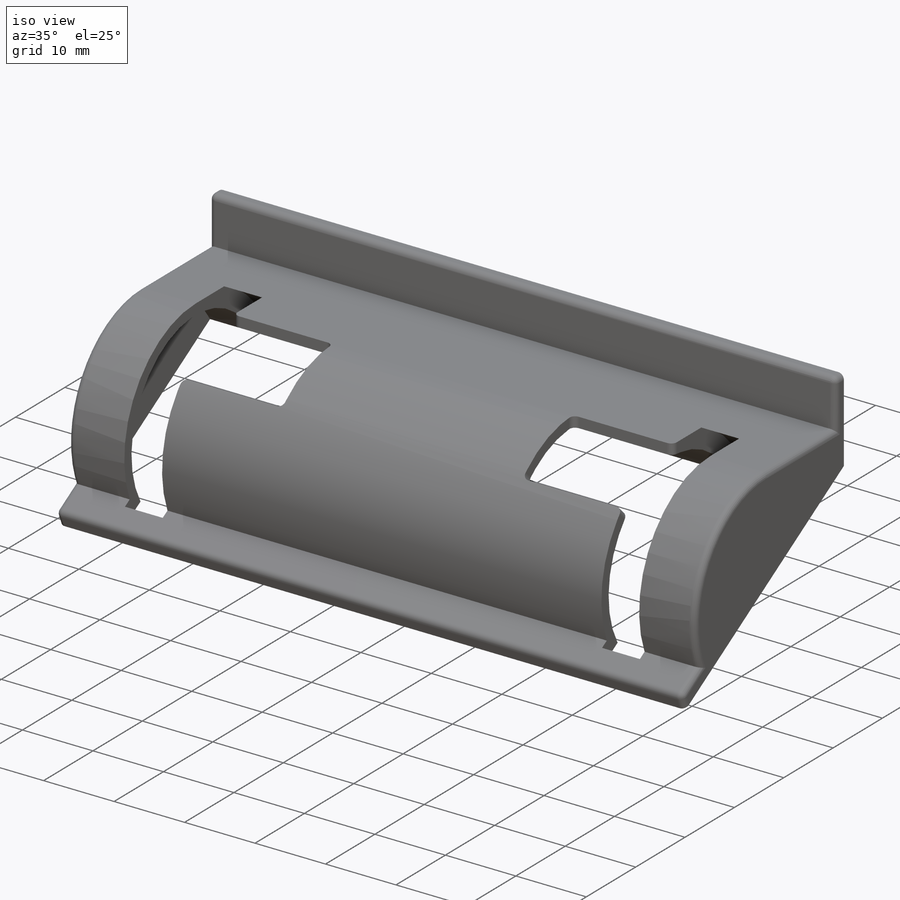
[diagram: iso view]
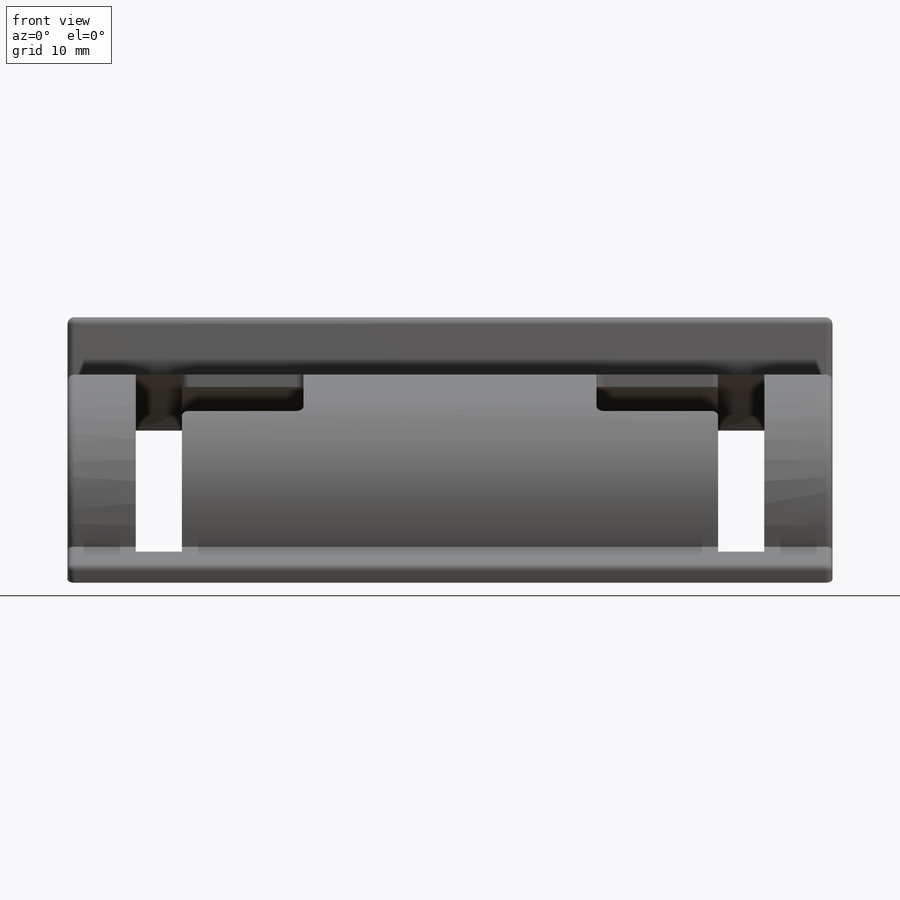
[diagram: front view]
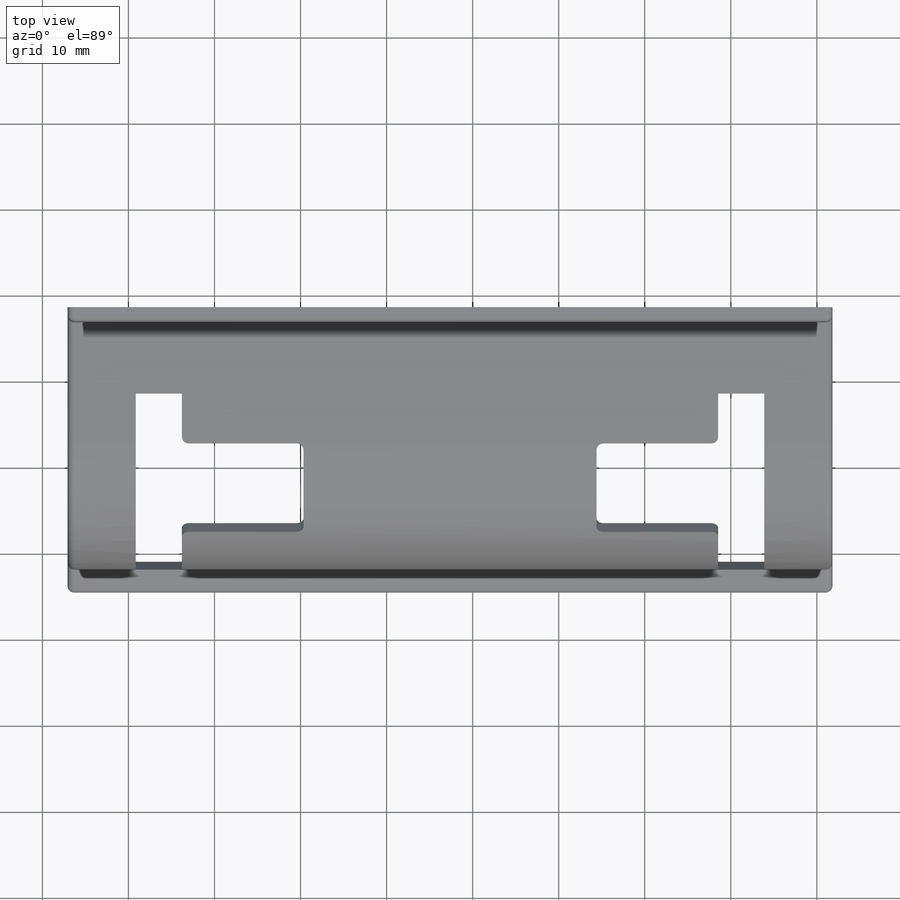
[diagram: top view]
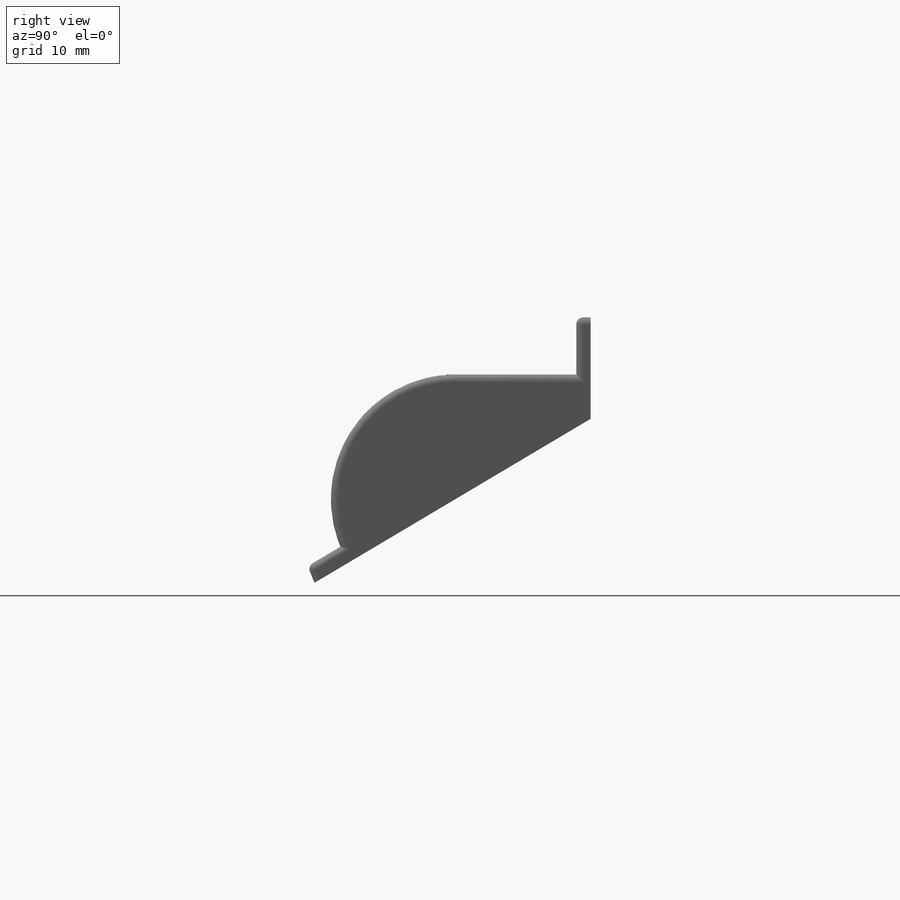
[diagram: right view]
SOLIDWORKS PART (.sldprt)
format: sldprt  version: not decoded by parser v0  size: 546,304 bytes
history: native  units: mm
features: sketch x4, cut_extrude x2, fillet x2, material x1, extrude x1, plane x1, cut_revolve x1 + 1 further entry (+21 scaffold rows collapsed; 3 parser-record rows omitted)
feature tree (37):
  scaffold x21  (default folders/planes/origin — collapsed)
  material  "Material <not specified>"
  "ModelAAirVentBody"
  parser-record x3  (decoder bookkeeping rows leaked as tree rows — omitted from the tree; the rows remain in map.json)
  sketch  "Sketch3"  dims[c1.D1=16.8148mm c1.D5=28.956mm c2.D1=1.2319mm c2.D2=4.318mm c2.D3=1.651mm c2.D4=2.0701mm]
  extrude  "Cover Main Solid"  [1 undecoded]
  plane  "Plane1"
  sketch  "Sketch5"
  cut_revolve  "Cut-Revolve2"  Angle=360deg
  sketch  "Sketch6"
  cut_extrude  "Extrude1"  Depth=14.1351mm
  sketch  "Sketch7"
  cut_extrude  "Extrude2"  Depth=14.1351mm
  fillet  "Fillet1"  Radius=0.79375mm
  fillet  "Fillet2"  Radius=0.79375mm
decode coverage: 6 of 10 modeling features carry decoded parameters; 1 rows unclassified (native names shown)
note: 1 parameter value undecoded
note: suppression state not decoded; provenance and decode notes live in map.json
